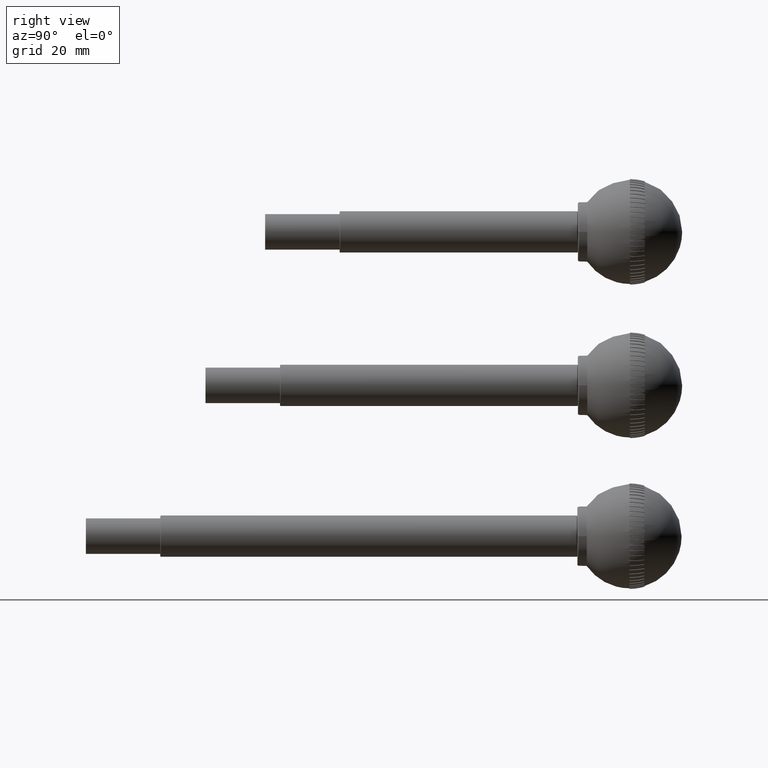
[diagram: clean part render]
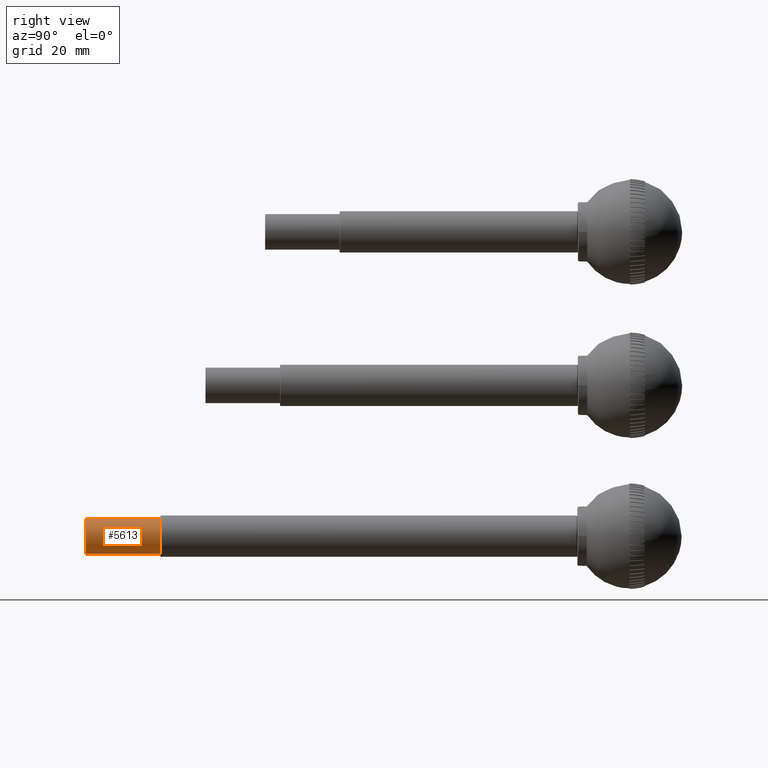
[diagram: same view with one face highlighted and labeled with its STEP entity id]
A machine part, right view. The second image highlights one B-rep face of the part: STEP entity #5613.
In plain terms, the highlighted cylindrical surface (bore or boss wall) has radius 6 mm, axis along (-0, 1, 0).
Its self-contained STEP definition (entity closure, byte-faithful):
#869=CYLINDRICAL_SURFACE('',#6468,6.);
#954=FACE_BOUND('',#1703,.T.);
#1286=FACE_OUTER_BOUND('',#1702,.T.);
#1702=EDGE_LOOP('',(#4967));
#1703=EDGE_LOOP('',(#4968));
#2213=CIRCLE('',#6465,6.);
#2214=CIRCLE('',#6467,6.);
#2722=VERTEX_POINT('',#10028);
#2723=VERTEX_POINT('',#10031);
#3471=EDGE_CURVE('',#2722,#2722,#2213,.T.);
#3472=EDGE_CURVE('',#2723,#2723,#2214,.T.);
#4967=ORIENTED_EDGE('',*,*,#3472,.T.);
#4968=ORIENTED_EDGE('',*,*,#3471,.F.);
#5613=ADVANCED_FACE('',(#1286,#954),#869,.T.);
#6465=AXIS2_PLACEMENT_3D('',#10029,#8409,#8410);
#6467=AXIS2_PLACEMENT_3D('',#10032,#8413,#8414);
#6468=AXIS2_PLACEMENT_3D('',#10033,#8415,#8416);
#8409=DIRECTION('center_axis',(1.,0.,0.));
#8410=DIRECTION('ref_axis',(0.,0.,-1.));
#8413=DIRECTION('center_axis',(1.,0.,0.));
#8414=DIRECTION('ref_axis',(0.,0.,-1.));
#8415=DIRECTION('center_axis',(1.,0.,0.));
#8416=DIRECTION('ref_axis',(0.,1.,0.));
#10028=CARTESIAN_POINT('',(25.,6.,0.));
#10029=CARTESIAN_POINT('Origin',(25.,0.,0.));
#10031=CARTESIAN_POINT('',(0.,6.,0.));
#10032=CARTESIAN_POINT('Origin',(0.,0.,0.));
#10033=CARTESIAN_POINT('Origin',(12.5,0.,0.));